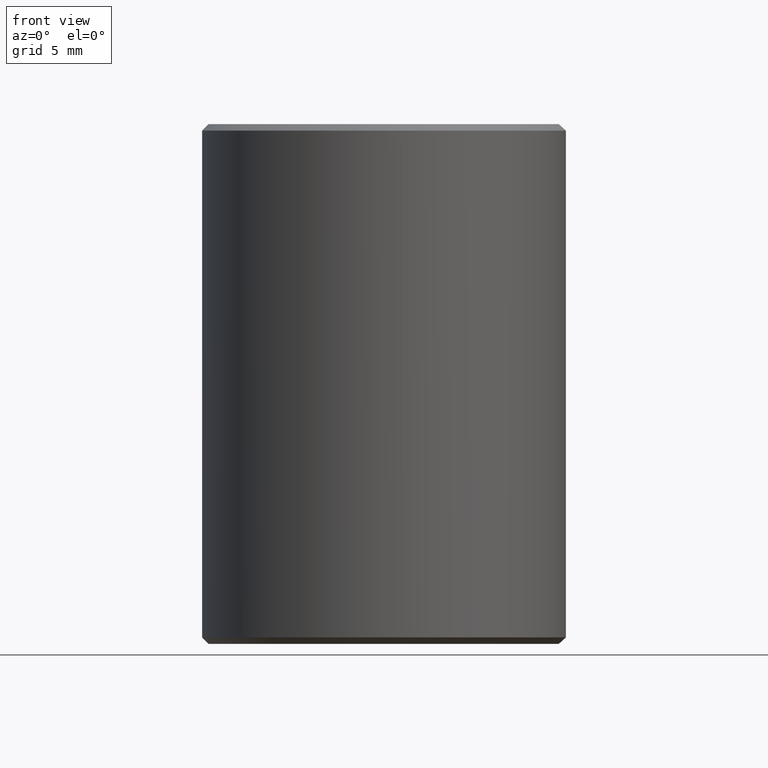
[diagram: clean part render]
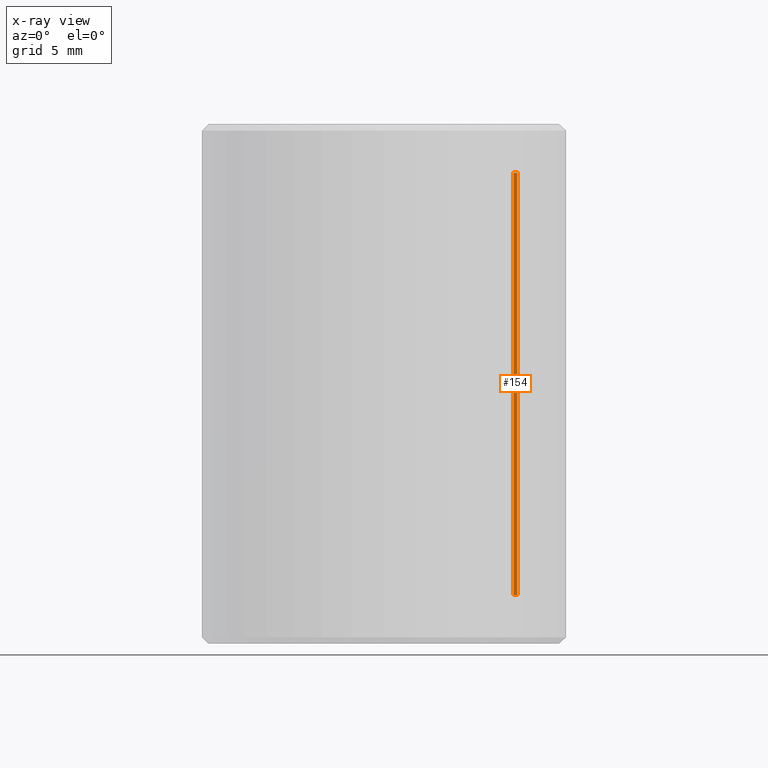
[diagram: x-ray — body ghosted, one internal face saturated and labeled with its STEP entity id]
A machine part, front view, then the same camera in x-ray: the body is ghosted and one INTERNAL B-rep face — a face not visible from any outside direction — is saturated and labeled: STEP entity #154.
In plain terms, the highlighted planar face has unit normal (-0, 1, 0).
Its self-contained STEP definition (entity closure, byte-faithful):
#154=ADVANCED_FACE('',(#172),#173,.T.);
#172=FACE_OUTER_BOUND('',#212,.T.);
#173=PLANE('',#213);
#212=EDGE_LOOP('',(#256,#257,#258,#259));
#213=AXIS2_PLACEMENT_3D('',#260,#261,#262);
#256=ORIENTED_EDGE('',*,*,#342,.F.);
#257=ORIENTED_EDGE('',*,*,#343,.T.);
#258=ORIENTED_EDGE('',*,*,#338,.T.);
#259=ORIENTED_EDGE('',*,*,#344,.F.);
#260=CARTESIAN_POINT('',(-0.00075,-0.011,0.03625));
#261=DIRECTION('',(1.0,0.0,1.23432247329119E-016));
#262=DIRECTION('',(-1.23432247329119E-016,0.0,1.0));
#338=EDGE_CURVE('',#360,#361,#362,.T.);
#342=EDGE_CURVE('',#368,#369,#370,.T.);
#343=EDGE_CURVE('',#368,#360,#371,.T.);
#344=EDGE_CURVE('',#369,#361,#372,.T.);
#360=VERTEX_POINT('',#398);
#361=VERTEX_POINT('',#399);
#362=LINE('',#400,#401);
#368=VERTEX_POINT('',#421);
#369=VERTEX_POINT('',#422);
#370=LINE('',#423,#424);
#371=LINE('',#425,#426);
#372=LINE('',#427,#428);
#398=CARTESIAN_POINT('',(-0.00075,-0.01025,0.00375));
#399=CARTESIAN_POINT('',(-0.00075,-0.00997183533758956,0.00375));
#400=CARTESIAN_POINT('',(-0.00075,-0.011,0.00375));
#401=VECTOR('',#470,1.0);
#421=CARTESIAN_POINT('',(-0.00075,-0.01025,0.03625));
#422=CARTESIAN_POINT('',(-0.00075,-0.00997183533758956,0.03625));
#423=CARTESIAN_POINT('',(-0.00075,-0.011,0.03625));
#424=VECTOR('',#475,1.0);
#425=CARTESIAN_POINT('',(-0.00075,-0.01025,0.03625));
#426=VECTOR('',#476,1.0);
#427=CARTESIAN_POINT('',(-0.00075,-0.00997183533758956,4.09604408644787E-019));
#428=VECTOR('',#477,1.0);
#470=DIRECTION('',(0.0,1.0,0.0));
#475=DIRECTION('',(0.0,1.0,0.0));
#476=DIRECTION('',(1.23432247329119E-016,0.0,-1.0));
#477=DIRECTION('',(0.0,-6.12323399573677E-017,-1.0));